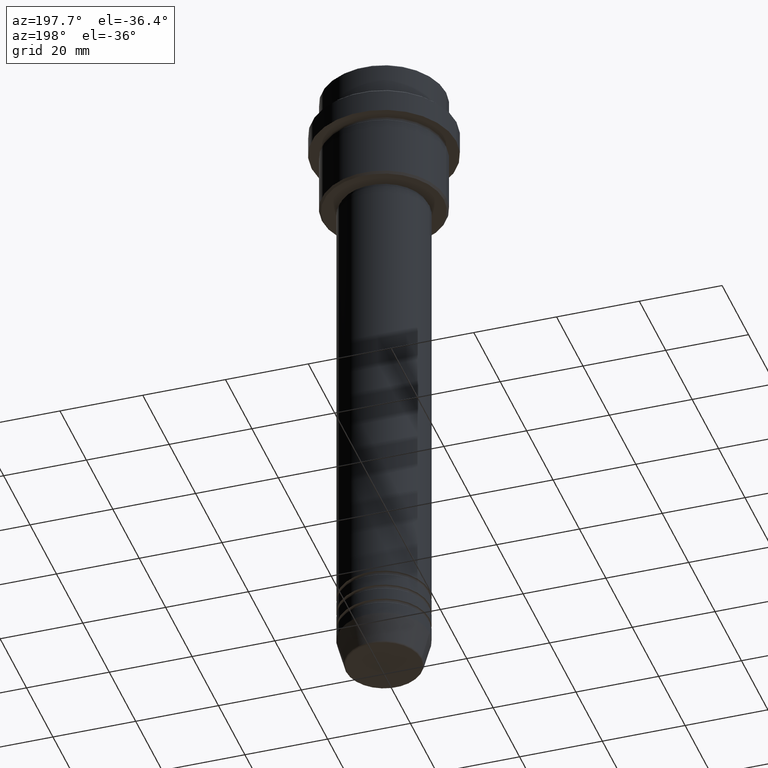
[diagram: clean part render]
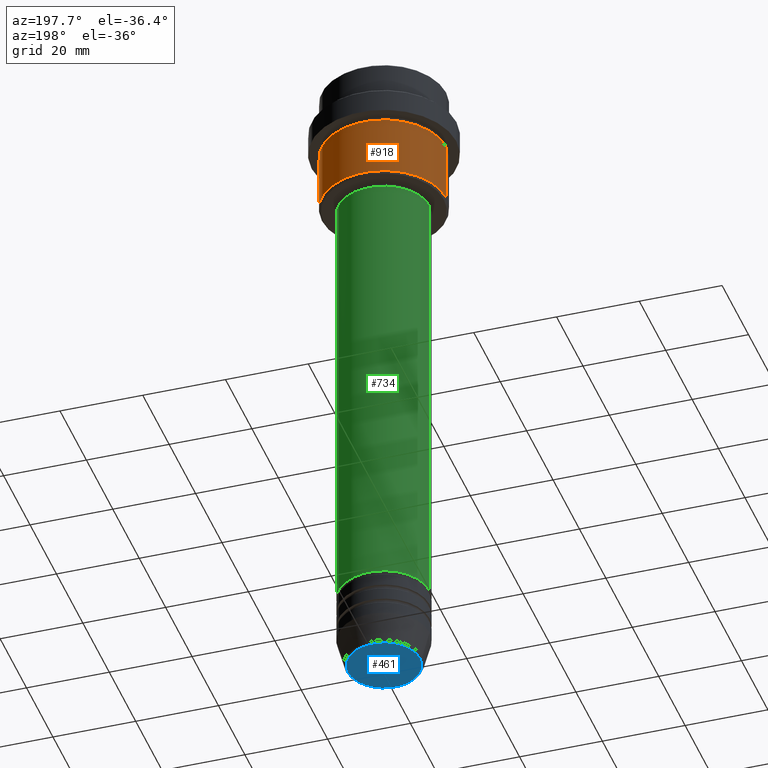
[diagram: same view with three faces highlighted in distinct colors, each labeled with its STEP entity id]
A machine part, auxiliary view with three faces highlighted in distinct colors.
Their STEP definitions:

[orange] entity #918 — the highlighted cylindrical surface (partial cylindrical patch) has radius 15 mm, axis along (-0, -0, 1).
#15 = DIRECTION ( 'NONE',  ( -0.000000000000000000, -0.000000000000000000, 1.000000000000000000 ) ) ;
#31 = AXIS2_PLACEMENT_3D ( 'NONE', #554, #533, #775 ) ;
#71 = CARTESIAN_POINT ( 'NONE',  ( 15.00000000000000178, 0.000000000000000000, -16.00000000000000000 ) ) ;
#75 = VERTEX_POINT ( 'NONE', #609 ) ;
#108 = AXIS2_PLACEMENT_3D ( 'NONE', #213, #662, #1230 ) ;
#174 = AXIS2_PLACEMENT_3D ( 'NONE', #583, #1007, #904 ) ;
#198 = CIRCLE ( 'NONE', #174, 15.00000000000000178 ) ;
#213 = CARTESIAN_POINT ( 'NONE',  ( 0.000000000000000000, 0.000000000000000000, -30.49999999999998934 ) ) ;
#250 = VERTEX_POINT ( 'NONE', #291 ) ;
#291 = CARTESIAN_POINT ( 'NONE',  ( 15.00000000000000000, 0.000000000000000000, -30.49999999999998934 ) ) ;
#305 = EDGE_CURVE ( 'NONE', #1061, #75, #1322, .T. ) ;
#326 = ORIENTED_EDGE ( 'NONE', *, *, #305, .T. ) ;
#357 = DIRECTION ( 'NONE',  ( -0.000000000000000000, -0.000000000000000000, 1.000000000000000000 ) ) ;
#406 = ORIENTED_EDGE ( 'NONE', *, *, #431, .F. ) ;
#408 = CIRCLE ( 'NONE', #108, 15.00000000000000000 ) ;
#430 = VECTOR ( 'NONE', #15, 1000.000000000000000 ) ;
#431 = EDGE_CURVE ( 'NONE', #1386, #75, #198, .T. ) ;
#452 = CARTESIAN_POINT ( 'NONE',  ( -15.00000000000000000, 1.836970198721029589E-15, 0.000000000000000000 ) ) ;
#533 = DIRECTION ( 'NONE',  ( -0.000000000000000000, -0.000000000000000000, 1.000000000000000000 ) ) ;
#540 = ORIENTED_EDGE ( 'NONE', *, *, #1001, .T. ) ;
#554 = CARTESIAN_POINT ( 'NONE',  ( 0.000000000000000000, 0.000000000000000000, 0.000000000000000000 ) ) ;
#583 = CARTESIAN_POINT ( 'NONE',  ( 0.000000000000000000, 0.000000000000000000, -16.00000000000000000 ) ) ;
#609 = CARTESIAN_POINT ( 'NONE',  ( -15.00000000000000355, 1.836970198721029983E-15, -16.00000000000000000 ) ) ;
#662 = DIRECTION ( 'NONE',  ( -0.000000000000000000, -0.000000000000000000, 1.000000000000000000 ) ) ;
#750 = EDGE_CURVE ( 'NONE', #250, #1386, #1332, .T. ) ;
#775 = DIRECTION ( 'NONE',  ( 1.000000000000000000, 0.000000000000000000, 0.000000000000000000 ) ) ;
#864 = FACE_OUTER_BOUND ( 'NONE', #1218, .T. ) ;
#865 = ORIENTED_EDGE ( 'NONE', *, *, #750, .F. ) ;
#868 = VECTOR ( 'NONE', #357, 1000.000000000000000 ) ;
#904 = DIRECTION ( 'NONE',  ( 1.000000000000000000, 0.000000000000000000, 0.000000000000000000 ) ) ;
#918 = ADVANCED_FACE ( 'NONE', ( #864 ), #1402, .T. ) ;
#1001 = EDGE_CURVE ( 'NONE', #250, #1061, #408, .T. ) ;
#1007 = DIRECTION ( 'NONE',  ( -0.000000000000000000, -0.000000000000000000, 1.000000000000000000 ) ) ;
#1061 = VERTEX_POINT ( 'NONE', #1216 ) ;
#1118 = CARTESIAN_POINT ( 'NONE',  ( 15.00000000000000000, 0.000000000000000000, 0.000000000000000000 ) ) ;
#1216 = CARTESIAN_POINT ( 'NONE',  ( -15.00000000000000000, 1.836970198721029589E-15, -30.49999999999998934 ) ) ;
#1218 = EDGE_LOOP ( 'NONE', ( #540, #326, #406, #865 ) ) ;
#1230 = DIRECTION ( 'NONE',  ( -1.000000000000000000, 0.000000000000000000, 0.000000000000000000 ) ) ;
#1322 = LINE ( 'NONE', #452, #430 ) ;
#1332 = LINE ( 'NONE', #1118, #868 ) ;
#1386 = VERTEX_POINT ( 'NONE', #71 ) ;
#1402 = CYLINDRICAL_SURFACE ( 'NONE', #31, 15.00000000000000000 ) ;

[blue] entity #461 — the highlighted planar face has unit normal (0, -0, 1).
#12 = AXIS2_PLACEMENT_3D ( 'NONE', #251, #704, #1124 ) ;
#191 = DIRECTION ( 'NONE',  ( 0.000000000000000000, 0.000000000000000000, -1.000000000000000000 ) ) ;
#206 = DIRECTION ( 'NONE',  ( 1.000000000000000000, 0.000000000000000000, 0.000000000000000000 ) ) ;
#226 = AXIS2_PLACEMENT_3D ( 'NONE', #508, #191, #1366 ) ;
#234 = EDGE_CURVE ( 'NONE', #985, #1129, #526, .T. ) ;
#241 = AXIS2_PLACEMENT_3D ( 'NONE', #1064, #1076, #206 ) ;
#251 = CARTESIAN_POINT ( 'NONE',  ( 0.000000000000000000, 0.000000000000000000, -160.9999999999999716 ) ) ;
#255 = ORIENTED_EDGE ( 'NONE', *, *, #807, .T. ) ;
#309 = EDGE_LOOP ( 'NONE', ( #1367, #255 ) ) ;
#461 = ADVANCED_FACE ( 'NONE', ( #1335 ), #1342, .F. ) ;
#508 = CARTESIAN_POINT ( 'NONE',  ( 0.000000000000000000, 0.000000000000000000, -160.9999999999999716 ) ) ;
#526 = CIRCLE ( 'NONE', #241, 8.740692158992663607 ) ;
#551 = CIRCLE ( 'NONE', #226, 8.740692158992663607 ) ;
#657 = CARTESIAN_POINT ( 'NONE',  ( 8.740692158992663607, 0.000000000000000000, -160.9999999999999716 ) ) ;
#704 = DIRECTION ( 'NONE',  ( 0.000000000000000000, -0.000000000000000000, 1.000000000000000000 ) ) ;
#801 = CARTESIAN_POINT ( 'NONE',  ( -8.740692158992663607, 1.099999016768740442E-15, -160.9999999999999716 ) ) ;
#807 = EDGE_CURVE ( 'NONE', #1129, #985, #551, .T. ) ;
#985 = VERTEX_POINT ( 'NONE', #657 ) ;
#1064 = CARTESIAN_POINT ( 'NONE',  ( 0.000000000000000000, 0.000000000000000000, -160.9999999999999716 ) ) ;
#1076 = DIRECTION ( 'NONE',  ( 0.000000000000000000, 0.000000000000000000, -1.000000000000000000 ) ) ;
#1124 = DIRECTION ( 'NONE',  ( 1.000000000000000000, 0.000000000000000000, 0.000000000000000000 ) ) ;
#1129 = VERTEX_POINT ( 'NONE', #801 ) ;
#1335 = FACE_OUTER_BOUND ( 'NONE', #309, .T. ) ;
#1342 = PLANE ( 'NONE',  #12 ) ;
#1366 = DIRECTION ( 'NONE',  ( 1.000000000000000000, 0.000000000000000000, 0.000000000000000000 ) ) ;
#1367 = ORIENTED_EDGE ( 'NONE', *, *, #234, .T. ) ;

[green] entity #734 — the highlighted cylindrical surface (partial cylindrical patch) has radius 11 mm, axis along (-0, -0, 1).
#26 = ORIENTED_EDGE ( 'NONE', *, *, #471, .F. ) ;
#37 = AXIS2_PLACEMENT_3D ( 'NONE', #684, #141, #128 ) ;
#48 = ORIENTED_EDGE ( 'NONE', *, *, #182, .T. ) ;
#55 = DIRECTION ( 'NONE',  ( -0.000000000000000000, -0.000000000000000000, 1.000000000000000000 ) ) ;
#128 = DIRECTION ( 'NONE',  ( 1.000000000000000000, 0.000000000000000000, 0.000000000000000000 ) ) ;
#141 = DIRECTION ( 'NONE',  ( -0.000000000000000000, -0.000000000000000000, 1.000000000000000000 ) ) ;
#171 = ORIENTED_EDGE ( 'NONE', *, *, #199, .F. ) ;
#182 = EDGE_CURVE ( 'NONE', #1163, #1372, #1369, .T. ) ;
#199 = EDGE_CURVE ( 'NONE', #1186, #1372, #598, .T. ) ;
#214 = EDGE_LOOP ( 'NONE', ( #1306, #48, #171, #26 ) ) ;
#285 = DIRECTION ( 'NONE',  ( 1.000000000000000000, 0.000000000000000000, 0.000000000000000000 ) ) ;
#364 = CYLINDRICAL_SURFACE ( 'NONE', #37, 11.00000000000000000 ) ;
#393 = LINE ( 'NONE', #934, #1071 ) ;
#443 = CARTESIAN_POINT ( 'NONE',  ( 11.00000000000000000, 0.000000000000000000, -141.9999999999999147 ) ) ;
#471 = EDGE_CURVE ( 'NONE', #962, #1186, #393, .T. ) ;
#515 = DIRECTION ( 'NONE',  ( -0.000000000000000000, -0.000000000000000000, 1.000000000000000000 ) ) ;
#598 = CIRCLE ( 'NONE', #1136, 10.99999999999999822 ) ;
#611 = CARTESIAN_POINT ( 'NONE',  ( -11.00000000000000000, 1.347111479062088405E-15, -141.9999999999999147 ) ) ;
#654 = DIRECTION ( 'NONE',  ( -0.000000000000000000, -0.000000000000000000, 1.000000000000000000 ) ) ;
#684 = CARTESIAN_POINT ( 'NONE',  ( 0.000000000000000000, 0.000000000000000000, 0.000000000000000000 ) ) ;
#710 = CARTESIAN_POINT ( 'NONE',  ( -10.99999999999999822, 1.347111479062088207E-15, -31.99999999999998579 ) ) ;
#734 = ADVANCED_FACE ( 'NONE', ( #793 ), #364, .T. ) ;
#793 = FACE_OUTER_BOUND ( 'NONE', #214, .T. ) ;
#803 = AXIS2_PLACEMENT_3D ( 'NONE', #1259, #515, #285 ) ;
#831 = CARTESIAN_POINT ( 'NONE',  ( 0.000000000000000000, 0.000000000000000000, -31.99999999999998579 ) ) ;
#854 = EDGE_CURVE ( 'NONE', #962, #1163, #1075, .T. ) ;
#934 = CARTESIAN_POINT ( 'NONE',  ( 11.00000000000000000, 0.000000000000000000, 0.000000000000000000 ) ) ;
#943 = DIRECTION ( 'NONE',  ( -0.000000000000000000, -0.000000000000000000, 1.000000000000000000 ) ) ;
#962 = VERTEX_POINT ( 'NONE', #443 ) ;
#1041 = CARTESIAN_POINT ( 'NONE',  ( 10.99999999999999822, 0.000000000000000000, -31.99999999999998579 ) ) ;
#1058 = CARTESIAN_POINT ( 'NONE',  ( -11.00000000000000000, 1.347111479062088405E-15, 0.000000000000000000 ) ) ;
#1071 = VECTOR ( 'NONE', #55, 1000.000000000000000 ) ;
#1075 = CIRCLE ( 'NONE', #803, 11.00000000000000000 ) ;
#1136 = AXIS2_PLACEMENT_3D ( 'NONE', #831, #943, #1165 ) ;
#1163 = VERTEX_POINT ( 'NONE', #611 ) ;
#1165 = DIRECTION ( 'NONE',  ( 1.000000000000000000, 0.000000000000000000, 0.000000000000000000 ) ) ;
#1186 = VERTEX_POINT ( 'NONE', #1041 ) ;
#1259 = CARTESIAN_POINT ( 'NONE',  ( 0.000000000000000000, 0.000000000000000000, -141.9999999999999147 ) ) ;
#1306 = ORIENTED_EDGE ( 'NONE', *, *, #854, .T. ) ;
#1336 = VECTOR ( 'NONE', #654, 1000.000000000000000 ) ;
#1369 = LINE ( 'NONE', #1058, #1336 ) ;
#1372 = VERTEX_POINT ( 'NONE', #710 ) ;